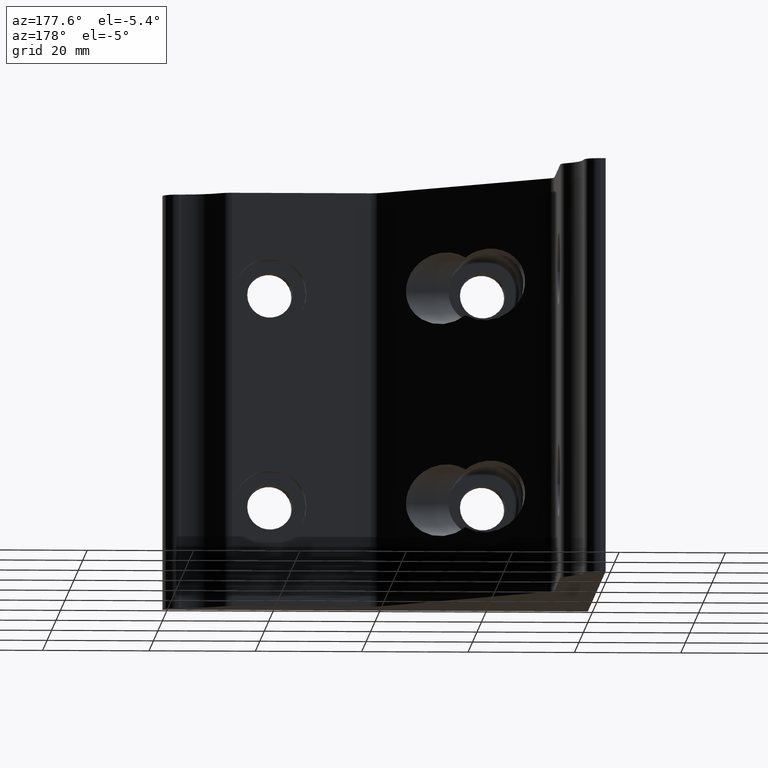
[diagram: clean part render]
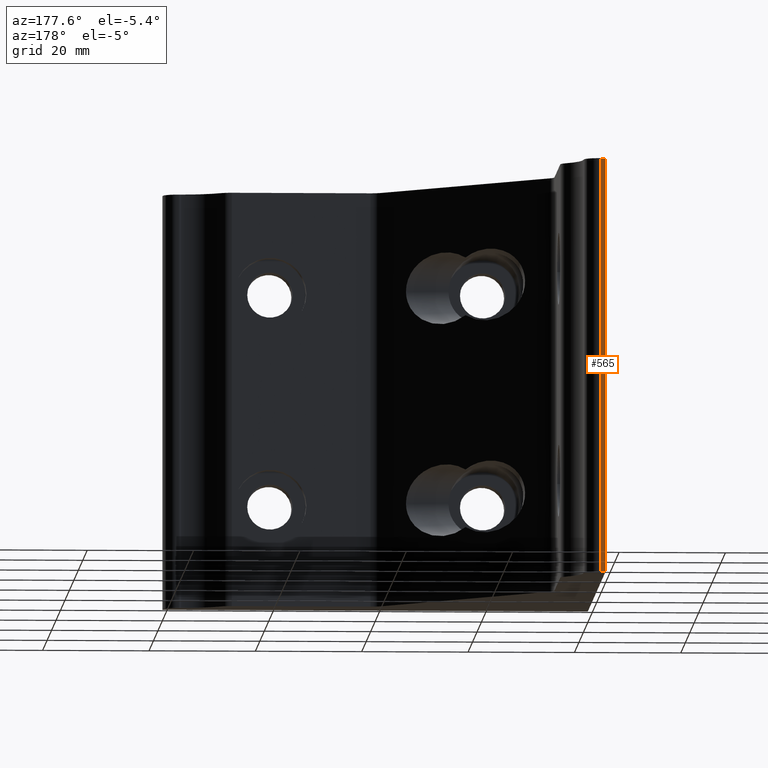
[diagram: same view with one face highlighted and labeled with its STEP entity id]
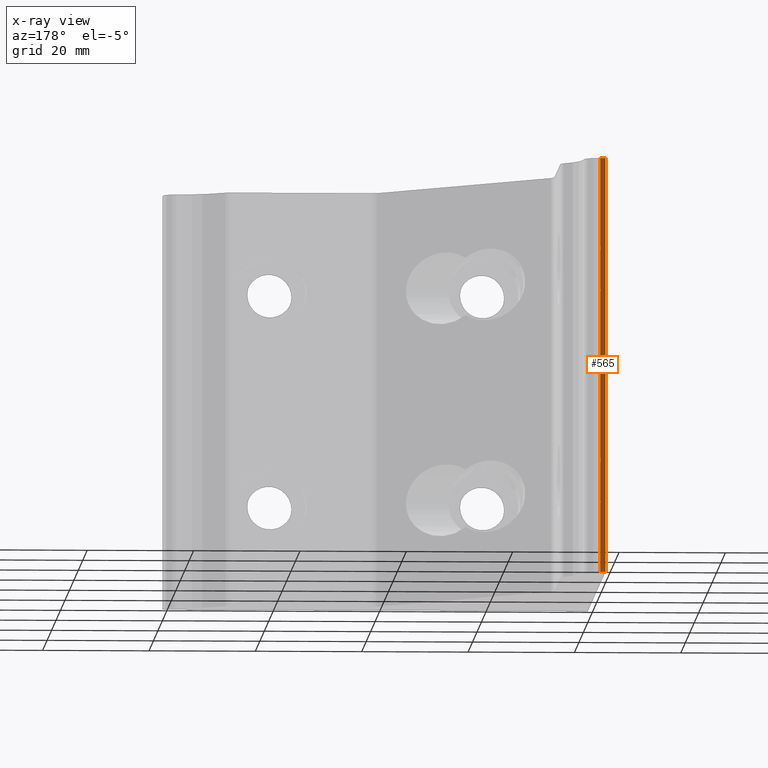
[diagram: x-ray of the same camera — body ghosted, the highlighted face saturated]
A machine part, auxiliary view. The second image highlights one B-rep face of the part: STEP entity #565.
The next image is the same camera in x-ray: the body ghosted, the highlighted face saturated — about 0% of this face is hidden behind the body in this view.
In plain terms, the highlighted planar face has unit normal (0, 1, 0).
Its self-contained STEP definition (entity closure, byte-faithful):
#508=CARTESIAN_POINT('',(0.999253008161645,79.999982239680321,-39.0));
#509=VERTEX_POINT('',#508);
#517=CARTESIAN_POINT('',(0.999253008161645,79.999982239680321,39.0));
#518=VERTEX_POINT('',#517);
#519=CARTESIAN_POINT('',(0.999253008161645,79.999982239680321,-39.0));
#520=DIRECTION('',(0.0,0.0,1.0));
#521=VECTOR('',#520,78.0);
#522=LINE('',#519,#521);
#523=EDGE_CURVE('',#509,#518,#522,.T.);
#535=CARTESIAN_POINT('',(0.999253008161645,79.999982239680321,-78.999973803528064));
#536=DIRECTION('',(0.0,1.0,0.0));
#537=DIRECTION('',(-1.0,0.0,0.0));
#538=AXIS2_PLACEMENT_3D('',#535,#536,#537);
#539=PLANE('',#538);
#540=ORIENTED_EDGE('',*,*,#523,.F.);
#541=CARTESIAN_POINT('',(0.0,79.999982239680321,-39.0));
#542=VERTEX_POINT('',#541);
#543=CARTESIAN_POINT('',(0.0,79.999982239680321,-39.0));
#544=DIRECTION('',(1.0,0.0,0.0));
#545=VECTOR('',#544,0.999253008161645);
#546=LINE('',#543,#545);
#547=EDGE_CURVE('',#542,#509,#546,.T.);
#548=ORIENTED_EDGE('',*,*,#547,.F.);
#549=CARTESIAN_POINT('',(0.0,79.999982239680321,39.0));
#550=VERTEX_POINT('',#549);
#551=CARTESIAN_POINT('',(0.0,79.999982239680321,-39.0));
#552=DIRECTION('',(0.0,0.0,1.0));
#553=VECTOR('',#552,78.0);
#554=LINE('',#551,#553);
#555=EDGE_CURVE('',#542,#550,#554,.T.);
#556=ORIENTED_EDGE('',*,*,#555,.T.);
#557=CARTESIAN_POINT('',(0.999253008161645,79.999982239680321,39.0));
#558=DIRECTION('',(-1.0,0.0,0.0));
#559=VECTOR('',#558,0.999253008161645);
#560=LINE('',#557,#559);
#561=EDGE_CURVE('',#518,#550,#560,.T.);
#562=ORIENTED_EDGE('',*,*,#561,.F.);
#563=EDGE_LOOP('',(#540,#548,#556,#562));
#564=FACE_OUTER_BOUND('',#563,.T.);
#565=ADVANCED_FACE('',(#564),#539,.T.);